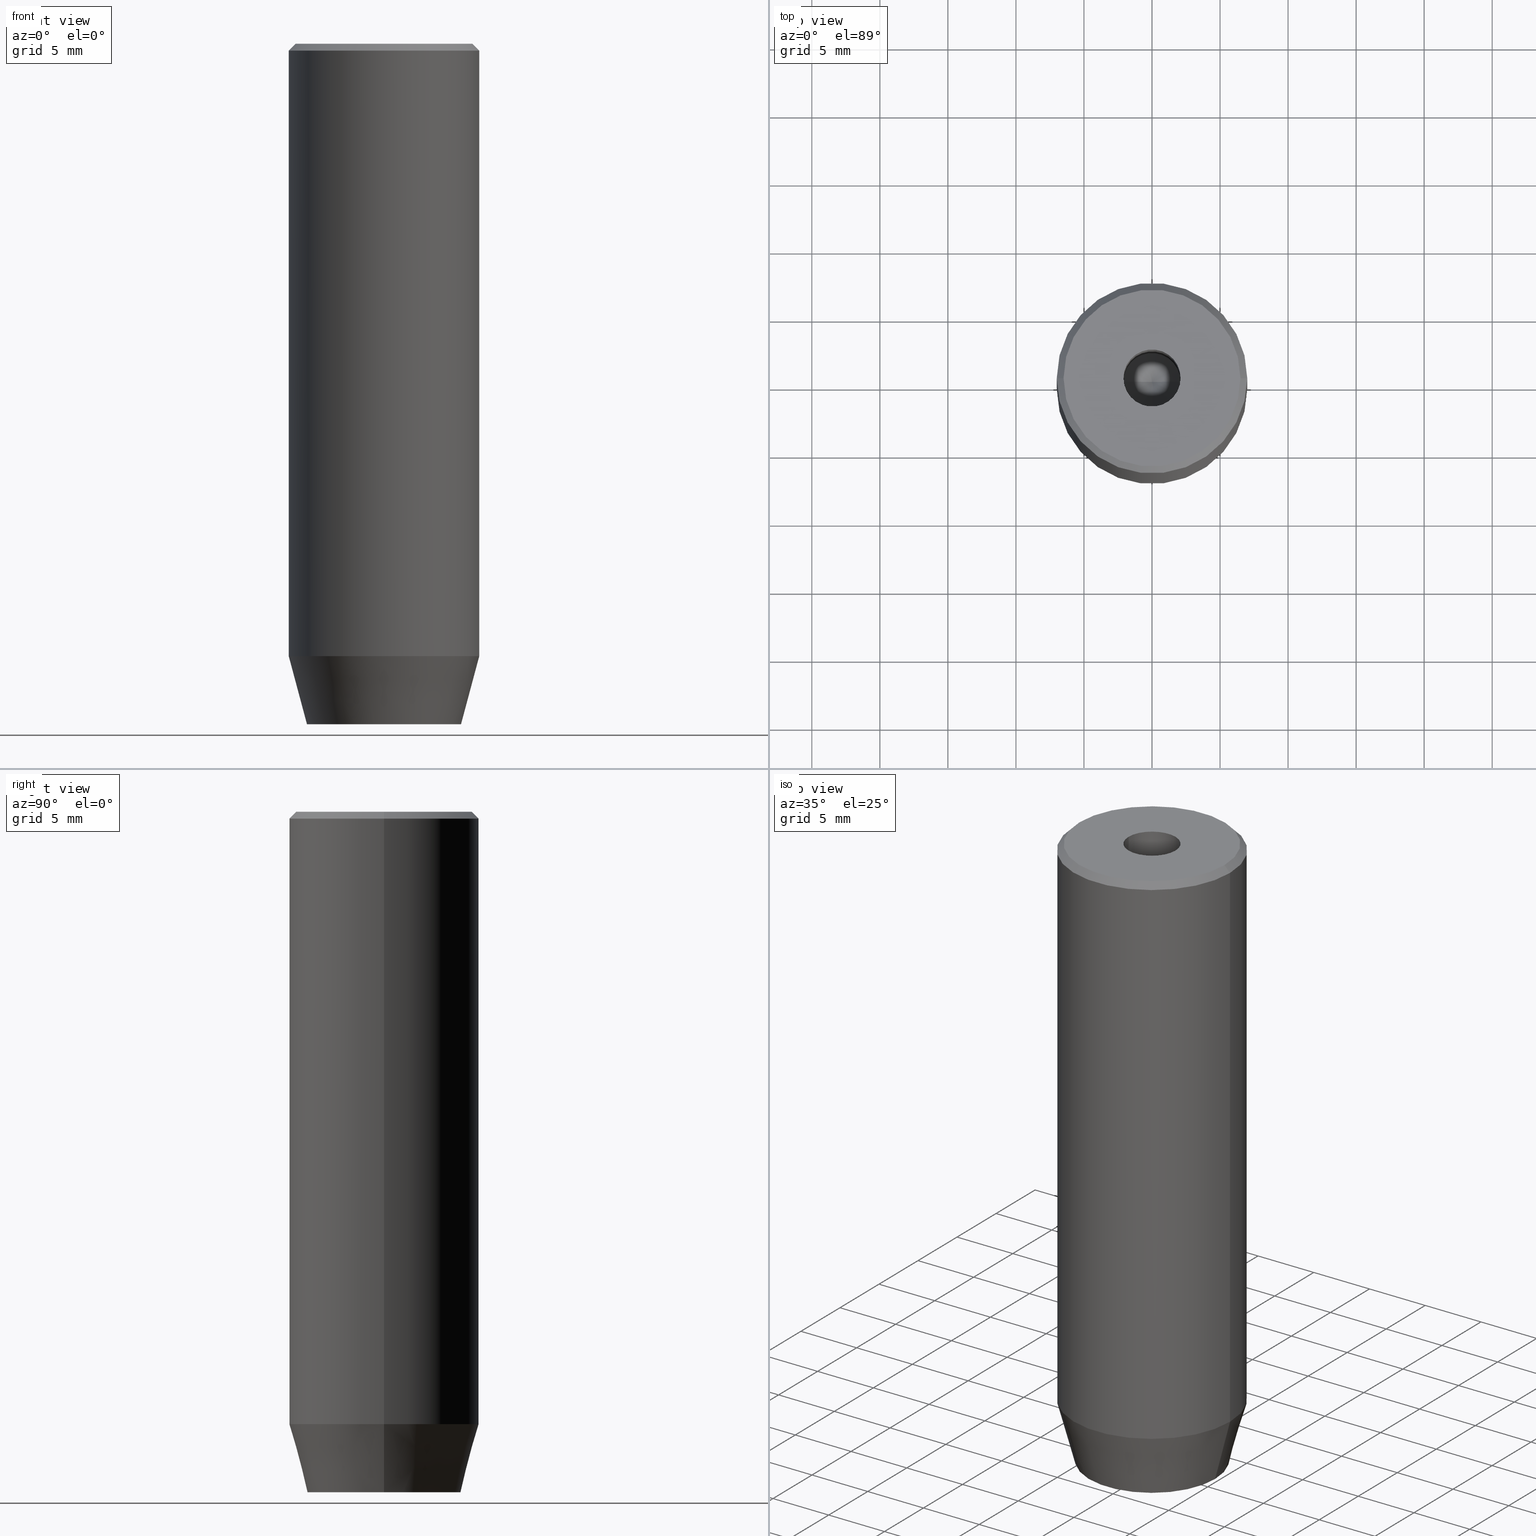
[diagram: canonical four-view strip — front | top / right | iso, engineering-drawing reading convention]
A machine part, canonical four-view strip (front | top / right | iso — engineering-drawing reading convention). The complete STEP part file that produces these views, byte-faithful:
ISO-10303-21;
HEADER;
FILE_DESCRIPTION (( 'STEP AP203' ),
    '1' );
FILE_NAME ('4acf.STEP',
    '2024-01-02T21:54:33',
    ( '' ),
    ( '' ),
    'SwSTEP 2.0',
    'SolidWorks 2019',
    '' );
FILE_SCHEMA (( 'CONFIG_CONTROL_DESIGN' ));
ENDSEC;

DATA;
#1 = APPROVAL_ROLE ( '' ) ;
#2 = EDGE_LOOP ( 'NONE', ( #227, #334, #571, #514 ) ) ;
#3 = EDGE_CURVE ( 'NONE', #48, #275, #117, .T. ) ;
#4 = FACE_OUTER_BOUND ( 'NONE', #389, .T. ) ;
#5 = ORIENTED_EDGE ( 'NONE', *, *, #456, .F. ) ;
#6 = CARTESIAN_POINT ( 'NONE',  ( 0.000000000000000000, 0.000000000000000000, -50.00000000000000000 ) ) ;
#7 = VECTOR ( 'NONE', #332, 1000.000000000000000 ) ;
#8 = ORIENTED_EDGE ( 'NONE', *, *, #541, .T. ) ;
#9 = CARTESIAN_POINT ( 'NONE',  ( -5.660254037844384634, 7.752169791919240742E-16, -50.00000000000000000 ) ) ;
#10 = CARTESIAN_POINT ( 'NONE',  ( 2.099999999999997868, 0.000000000000000000, 0.000000000000000000 ) ) ;
#11 = ORIENTED_EDGE ( 'NONE', *, *, #58, .T. ) ;
#12 = CYLINDRICAL_SURFACE ( 'NONE', #196, 2.099999999999997868 ) ;
#13 = EDGE_CURVE ( 'NONE', #460, #445, #201, .T. ) ;
#14 = EDGE_LOOP ( 'NONE', ( #102, #152, #497, #31 ) ) ;
#15 = CARTESIAN_POINT ( 'NONE',  ( -1.249999999999999556, -2.165063509461096825, -47.20000000000000284 ) ) ;
#16 = CC_DESIGN_PERSON_AND_ORGANIZATION_ASSIGNMENT ( #264, #304, ( #387 ) ) ;
#17 = CIRCLE ( 'NONE', #240, 6.499999999999999112 ) ;
#18 = CONICAL_SURFACE ( 'NONE', #72, 2.099999999999996980, 1.029744258676652535 ) ;
#19 = DIRECTION ( 'NONE',  ( 0.000000000000000000, 0.000000000000000000, 1.000000000000000000 ) ) ;
#20 = ORIENTED_EDGE ( 'NONE', *, *, #222, .T. ) ;
#21 = CARTESIAN_POINT ( 'NONE',  ( -1.084202172485504434E-16, 2.886751345948129543, -47.20000000000000284 ) ) ;
#22 = CARTESIAN_POINT ( 'NONE',  ( 2.099999999999996980, 0.000000000000000000, -15.00000000000000000 ) ) ;
#23 = DIRECTION ( 'NONE',  ( -0.000000000000000000, -0.000000000000000000, 1.000000000000000000 ) ) ;
#24 = DIRECTION ( 'NONE',  ( 1.000000000000000000, 0.000000000000000000, 0.000000000000000000 ) ) ;
#25 = DIRECTION ( 'NONE',  ( 1.000000000000000000, 0.000000000000000000, 0.000000000000000000 ) ) ;
#26 = ORIENTED_EDGE ( 'NONE', *, *, #364, .F. ) ;
#27 = EDGE_CURVE ( 'NONE', #517, #376, #421, .T. ) ;
#28 = DIRECTION ( 'NONE',  ( -0.000000000000000000, 0.000000000000000000, -1.000000000000000000 ) ) ;
#29 = LOCAL_TIME ( 22, 54, 33.00000000000000000, #295 ) ;
#30 = COORDINATED_UNIVERSAL_TIME_OFFSET ( 1, 0, .AHEAD. ) ;
#31 = ORIENTED_EDGE ( 'NONE', *, *, #283, .T. ) ;
#32 = APPROVAL ( #128, 'NEUR�EN�' ) ;
#33 = FACE_OUTER_BOUND ( 'NONE', #454, .T. ) ;
#34 = CARTESIAN_POINT ( 'NONE',  ( 0.000000000000000000, 0.000000000000000000, -1.990051048614449116E-16 ) ) ;
#35 = CARTESIAN_POINT ( 'NONE',  ( 7.000000000000000000, 0.000000000000000000, -45.00000000000000711 ) ) ;
#36 = EDGE_CURVE ( 'NONE', #163, #445, #563, .T. ) ;
#37 = DIRECTION ( 'NONE',  ( 1.000000000000000000, 0.000000000000000000, 0.000000000000000000 ) ) ;
#38 = CARTESIAN_POINT ( 'NONE',  ( 2.500000000000000000, 0.000000000000000000, -47.20000000000000284 ) ) ;
#39 = VECTOR ( 'NONE', #394, 1000.000000000000114 ) ;
#40 = FACE_BOUND ( 'NONE', #347, .T. ) ;
#41 = DIRECTION ( 'NONE',  ( 0.8660254037844385966, -0.5000000000000001110, 0.000000000000000000 ) ) ;
#42 = COORDINATED_UNIVERSAL_TIME_OFFSET ( 1, 0, .AHEAD. ) ;
#43 = EDGE_CURVE ( 'NONE', #460, #94, #343, .T. ) ;
#44 = VERTEX_POINT ( 'NONE', #253 ) ;
#45 = PERSON_AND_ORGANIZATION_ROLE ( 'classification_officer' ) ;
#46 = CARTESIAN_POINT ( 'NONE',  ( 2.500000000000000000, -1.443375672974064106, -47.20000000000000284 ) ) ;
#47 = PRODUCT_RELATED_PRODUCT_CATEGORY ( 'detail', '', ( #299 ) ) ;
#48 = VERTEX_POINT ( 'NONE', #439 ) ;
#49 = PERSON_AND_ORGANIZATION ( #566, #92 ) ;
#50 = CARTESIAN_POINT ( 'NONE',  ( 1.250000000000000222, 2.165063509461096825, -47.20000000000000284 ) ) ;
#51 = PERSON_AND_ORGANIZATION ( #566, #92 ) ;
#52 = DIRECTION ( 'NONE',  ( 0.5000000000000001110, 0.8660254037844385966, -0.000000000000000000 ) ) ;
#53 = APPROVAL ( #248, 'NEUR�EN�' ) ;
#54 = ORIENTED_EDGE ( 'NONE', *, *, #3, .F. ) ;
#55 = CARTESIAN_POINT ( 'NONE',  ( -2.168404344971008868E-16, 2.886751345948129099, -50.00000000000000000 ) ) ;
#56 = AXIS2_PLACEMENT_3D ( 'NONE', #241, #418, #559 ) ;
#57 = VECTOR ( 'NONE', #93, 1000.000000000000000 ) ;
#58 = EDGE_CURVE ( 'NONE', #553, #44, #397, .T. ) ;
#59 = DIRECTION ( 'NONE',  ( 1.000000000000000000, 0.000000000000000000, 0.000000000000000000 ) ) ;
#60 = ORIENTED_EDGE ( 'NONE', *, *, #450, .F. ) ;
#61 = CARTESIAN_POINT ( 'NONE',  ( 1.249999999999999778, -2.165063509461096380, -50.00000000000000000 ) ) ;
#62 = ORIENTED_EDGE ( 'NONE', *, *, #437, .T. ) ;
#63 = CARTESIAN_POINT ( 'NONE',  ( 2.500000000000000000, 1.443375672974064328, -50.00000000000000000 ) ) ;
#64 = AXIS2_PLACEMENT_3D ( 'NONE', #34, #529, #120 ) ;
#65 = ORIENTED_EDGE ( 'NONE', *, *, #283, .F. ) ;
#66 = CARTESIAN_POINT ( 'NONE',  ( -6.499999999999999112, 0.000000000000000000, 0.000000000000000000 ) ) ;
#67 = ADVANCED_FACE ( 'NONE', ( #577 ), #519, .T. ) ;
#68 = ORIENTED_EDGE ( 'NONE', *, *, #160, .T. ) ;
#69 = CARTESIAN_POINT ( 'NONE',  ( 0.000000000000000000, 0.000000000000000000, -15.00000000000000000 ) ) ;
#70 = APPLICATION_PROTOCOL_DEFINITION ( 'international standard', 'config_control_design', 1994, #328 ) ;
#71 = DIRECTION ( 'NONE',  ( -0.000000000000000000, -0.000000000000000000, 1.000000000000000000 ) ) ;
#72 = AXIS2_PLACEMENT_3D ( 'NONE', #552, #462, #140 ) ;
#73 = ORIENTED_EDGE ( 'NONE', *, *, #481, .F. ) ;
#74 = CARTESIAN_POINT ( 'NONE',  ( 0.000000000000000000, 0.000000000000000000, -15.00000000000000000 ) ) ;
#75 = ADVANCED_FACE ( 'NONE', ( #213 ), #308, .T. ) ;
#76 = CARTESIAN_POINT ( 'NONE',  ( -7.000000000000000000, 8.572527594031473190E-16, -45.00000000000000711 ) ) ;
#77 = CARTESIAN_POINT ( 'NONE',  ( 0.000000000000000000, 0.000000000000000000, -15.00000000000000000 ) ) ;
#78 = DIRECTION ( 'NONE',  ( 1.000000000000000000, 0.000000000000000000, 0.000000000000000000 ) ) ;
#79 = ORIENTED_EDGE ( 'NONE', *, *, #43, .T. ) ;
#80 = AXIS2_PLACEMENT_3D ( 'NONE', #231, #416, #195 ) ;
#81 = DIRECTION ( 'NONE',  ( 1.000000000000000000, 0.000000000000000000, 0.000000000000000000 ) ) ;
#82 = DIRECTION ( 'NONE',  ( -1.000000000000000000, 0.000000000000000000, 0.000000000000000000 ) ) ;
#83 = EDGE_LOOP ( 'NONE', ( #532, #463, #494, #136 ) ) ;
#84 = EDGE_CURVE ( 'NONE', #267, #376, #218, .T. ) ;
#85 = COORDINATED_UNIVERSAL_TIME_OFFSET ( 1, 0, .AHEAD. ) ;
#86 = EDGE_LOOP ( 'NONE', ( #505, #443, #417, #414, #396, #73 ) ) ;
#87 = DATE_AND_TIME ( #169, #127 ) ;
#88 = AXIS2_PLACEMENT_3D ( 'NONE', #573, #344, #112 ) ;
#89 = CARTESIAN_POINT ( 'NONE',  ( -2.500000000000000444, -1.443375672974064328, -50.00000000000000000 ) ) ;
#90 = CIRCLE ( 'NONE', #423, 5.660254037844384634 ) ;
#91 = ADVANCED_FACE ( 'NONE', ( #40, #402 ), #174, .T. ) ;
#92 = ORGANIZATION ( 'NEUR�EN�', 'NEUR�EN�', '' ) ;
#93 = DIRECTION ( 'NONE',  ( -0.000000000000000000, -0.000000000000000000, 1.000000000000000000 ) ) ;
#94 = VERTEX_POINT ( 'NONE', #235 ) ;
#95 = CARTESIAN_POINT ( 'NONE',  ( 2.500000000000000000, 1.443375672974064328, -47.20000000000000284 ) ) ;
#96 = EDGE_CURVE ( 'NONE', #376, #517, #251, .T. ) ;
#97 = FACE_OUTER_BOUND ( 'NONE', #314, .T. ) ;
#98 = ORIENTED_EDGE ( 'NONE', *, *, #290, .T. ) ;
#99 = DIRECTION ( 'NONE',  ( 1.000000000000000000, 0.000000000000000000, 0.000000000000000000 ) ) ;
#100 = CIRCLE ( 'NONE', #88, 5.660254037844384634 ) ;
#101 = CARTESIAN_POINT ( 'NONE',  ( -7.000000000000000000, 8.572527594031473190E-16, 0.000000000000000000 ) ) ;
#102 = ORIENTED_EDGE ( 'NONE', *, *, #481, .T. ) ;
#103 = DIRECTION ( 'NONE',  ( -0.8660254037844387076, 0.4999999999999998890, 0.000000000000000000 ) ) ;
#104 = ORIENTED_EDGE ( 'NONE', *, *, #309, .F. ) ;
#105 = CARTESIAN_POINT ( 'NONE',  ( 0.000000000000000000, 0.000000000000000000, 0.000000000000000000 ) ) ;
#106 = ORIENTED_EDGE ( 'NONE', *, *, #96, .T. ) ;
#107 = FACE_OUTER_BOUND ( 'NONE', #208, .T. ) ;
#108 = EDGE_CURVE ( 'NONE', #273, #419, #468, .T. ) ;
#109 = CONICAL_SURFACE ( 'NONE', #315, 7.000000000000000000, 0.2617993877991499074 ) ;
#110 =( NAMED_UNIT ( * ) PLANE_ANGLE_UNIT ( ) SI_UNIT ( $, .RADIAN. ) );
#111 = ORIENTED_EDGE ( 'NONE', *, *, #309, .T. ) ;
#112 = DIRECTION ( 'NONE',  ( 1.000000000000000000, 0.000000000000000000, 0.000000000000000000 ) ) ;
#113 = ORIENTED_EDGE ( 'NONE', *, *, #556, .T. ) ;
#114 = CARTESIAN_POINT ( 'NONE',  ( -1.249999999999999556, -2.165063509461096825, -47.20000000000000284 ) ) ;
#115 = EDGE_CURVE ( 'NONE', #410, #267, #530, .T. ) ;
#116 = CARTESIAN_POINT ( 'NONE',  ( -2.099999999999997868, 2.571758278209438999E-16, 0.000000000000000000 ) ) ;
#117 = CIRCLE ( 'NONE', #457, 2.099999999999996980 ) ;
#118 = CONICAL_SURFACE ( 'NONE', #458, 6.499999999999999112, 0.7853981633974447263 ) ;
#119 = PERSON_AND_ORGANIZATION ( #566, #92 ) ;
#120 = DIRECTION ( 'NONE',  ( 1.000000000000000000, 0.000000000000000000, 0.000000000000000000 ) ) ;
#121 = CARTESIAN_POINT ( 'NONE',  ( -2.500000000000000444, 1.443375672974064772, -47.20000000000000284 ) ) ;
#122 = VERTEX_POINT ( 'NONE', #321 ) ;
#123 = DIRECTION ( 'NONE',  ( 0.5000000000000000000, -0.8660254037844387076, 0.000000000000000000 ) ) ;
#124 = CARTESIAN_POINT ( 'NONE',  ( 0.000000000000000000, 0.000000000000000000, 0.000000000000000000 ) ) ;
#125 = EDGE_CURVE ( 'NONE', #384, #148, #350, .T. ) ;
#126 = VECTOR ( 'NONE', #536, 1000.000000000000000 ) ;
#127 = LOCAL_TIME ( 22, 54, 33.00000000000000000, #85 ) ;
#128 = APPROVAL_STATUS ( 'not_yet_approved' ) ;
#129 = DIRECTION ( 'NONE',  ( -0.000000000000000000, -0.000000000000000000, -1.000000000000000000 ) ) ;
#130 = DATE_AND_TIME ( #542, #503 ) ;
#131 = EDGE_CURVE ( 'NONE', #331, #163, #548, .T. ) ;
#132 = AXIS2_PLACEMENT_3D ( 'NONE', #38, #390, #28 ) ;
#133 = CARTESIAN_POINT ( 'NONE',  ( -2.500000000000000444, 0.000000000000000000, -47.20000000000000284 ) ) ;
#134 = ORIENTED_EDGE ( 'NONE', *, *, #236, .T. ) ;
#135 = VECTOR ( 'NONE', #478, 1000.000000000000114 ) ;
#136 = ORIENTED_EDGE ( 'NONE', *, *, #473, .T. ) ;
#137 = CARTESIAN_POINT ( 'NONE',  ( 0.000000000000000000, -2.886751345948128211, -50.00000000000000000 ) ) ;
#138 = EDGE_CURVE ( 'NONE', #410, #517, #150, .T. ) ;
#139 = CARTESIAN_POINT ( 'NONE',  ( 0.000000000000000000, 0.000000000000000000, -0.5000000000000048850 ) ) ;
#140 = DIRECTION ( 'NONE',  ( 1.000000000000000000, 0.000000000000000000, 0.000000000000000000 ) ) ;
#141 = ORIENTED_EDGE ( 'NONE', *, *, #345, .T. ) ;
#142 = FACE_OUTER_BOUND ( 'NONE', #263, .T. ) ;
#143 = AXIS2_PLACEMENT_3D ( 'NONE', #74, #487, #78 ) ;
#144 = DIRECTION ( 'NONE',  ( 0.000000000000000000, 0.000000000000000000, -1.000000000000000000 ) ) ;
#145 = ORIENTED_EDGE ( 'NONE', *, *, #290, .F. ) ;
#146 = DIRECTION ( 'NONE',  ( 0.000000000000000000, 0.000000000000000000, -1.000000000000000000 ) ) ;
#147 = LINE ( 'NONE', #10, #57 ) ;
#148 = VERTEX_POINT ( 'NONE', #464 ) ;
#149 = PRODUCT_DEFINITION ( 'NEZN�M�', '', #387, #210 ) ;
#150 = LINE ( 'NONE', #66, #359 ) ;
#151 = DIRECTION ( 'NONE',  ( -0.2588190451025211836, 3.169619151431770488E-17, 0.9659258262890680902 ) ) ;
#152 = ORIENTED_EDGE ( 'NONE', *, *, #131, .F. ) ;
#153 = APPROVAL ( #544, 'NEUR�EN�' ) ;
#154 = CARTESIAN_POINT ( 'NONE',  ( 0.000000000000000000, 0.000000000000000000, -45.00000000000000711 ) ) ;
#155 = AXIS2_PLACEMENT_3D ( 'NONE', #114, #531, #257 ) ;
#156 = SECURITY_CLASSIFICATION ( '', '', #459 ) ;
#157 = MECHANICAL_CONTEXT ( 'NONE', #551, 'mechanical' ) ;
#158 = DIRECTION ( 'NONE',  ( 0.000000000000000000, -1.000000000000000000, 0.000000000000000000 ) ) ;
#159 = DIRECTION ( 'NONE',  ( -0.000000000000000000, -0.000000000000000000, 1.000000000000000000 ) ) ;
#160 = EDGE_CURVE ( 'NONE', #419, #122, #477, .T. ) ;
#161 = ADVANCED_BREP_SHAPE_REPRESENTATION ( '4acf', ( #461, #271 ), #168 ) ;
#162 = PERSON_AND_ORGANIZATION ( #566, #92 ) ;
#163 = VERTEX_POINT ( 'NONE', #63 ) ;
#164 = CARTESIAN_POINT ( 'NONE',  ( -6.499999999999999112, 0.000000000000000000, 0.000000000000000000 ) ) ;
#165 = VERTEX_POINT ( 'NONE', #233 ) ;
#166 = FACE_OUTER_BOUND ( 'NONE', #83, .T. ) ;
#167 = VECTOR ( 'NONE', #567, 1000.000000000000000 ) ;
#168 =( GEOMETRIC_REPRESENTATION_CONTEXT ( 3 ) GLOBAL_UNCERTAINTY_ASSIGNED_CONTEXT ( ( #171 ) ) GLOBAL_UNIT_ASSIGNED_CONTEXT ( ( #333, #110, #433 ) ) REPRESENTATION_CONTEXT ( 'NONE', 'WORKASPACE' ) );
#169 = CALENDAR_DATE ( 2024, 2, 1 ) ;
#170 = ORIENTED_EDGE ( 'NONE', *, *, #108, .T. ) ;
#171 = UNCERTAINTY_MEASURE_WITH_UNIT (LENGTH_MEASURE( 1.000000000000000082E-05 ), #333, 'distance_accuracy_value', 'NONE');
#172 = DIRECTION ( 'NONE',  ( -0.000000000000000000, -0.000000000000000000, -1.000000000000000000 ) ) ;
#173 = ORIENTED_EDGE ( 'NONE', *, *, #324, .T. ) ;
#174 = PLANE ( 'NONE',  #325 ) ;
#175 = EDGE_CURVE ( 'NONE', #94, #273, #518, .T. ) ;
#176 = CARTESIAN_POINT ( 'NONE',  ( 0.000000000000000000, 0.000000000000000000, 0.000000000000000000 ) ) ;
#177 = ORIENTED_EDGE ( 'NONE', *, *, #345, .F. ) ;
#178 = LOCAL_TIME ( 22, 54, 33.00000000000000000, #42 ) ;
#179 = LINE ( 'NONE', #133, #185 ) ;
#180 = ADVANCED_FACE ( 'NONE', ( #107 ), #12, .F. ) ;
#181 = DATE_TIME_ROLE ( 'classification_date' ) ;
#182 = CARTESIAN_POINT ( 'NONE',  ( 0.000000000000000000, 0.000000000000000000, 0.000000000000000000 ) ) ;
#183 = VERTEX_POINT ( 'NONE', #55 ) ;
#184 = CARTESIAN_POINT ( 'NONE',  ( -1.250000000000000444, 2.165063509461097269, -47.20000000000000284 ) ) ;
#185 = VECTOR ( 'NONE', #365, 1000.000000000000000 ) ;
#186 = FACE_BOUND ( 'NONE', #86, .T. ) ;
#187 = AXIS2_PLACEMENT_3D ( 'NONE', #504, #144, #278 ) ;
#188 = DIRECTION ( 'NONE',  ( -0.000000000000000000, -0.000000000000000000, -1.000000000000000000 ) ) ;
#189 = EDGE_LOOP ( 'NONE', ( #368, #479, #469 ) ) ;
#190 = EDGE_CURVE ( 'NONE', #165, #215, #90, .T. ) ;
#191 = CYLINDRICAL_SURFACE ( 'NONE', #435, 2.099999999999997868 ) ;
#192 = EDGE_LOOP ( 'NONE', ( #424, #471, #512, #79, #249, #62 ) ) ;
#193 = PLANE ( 'NONE',  #80 ) ;
#194 = EDGE_LOOP ( 'NONE', ( #279, #246, #5, #230 ) ) ;
#195 = DIRECTION ( 'NONE',  ( -1.000000000000000000, 0.000000000000000000, -0.000000000000000000 ) ) ;
#196 = AXIS2_PLACEMENT_3D ( 'NONE', #105, #287, #413 ) ;
#197 = EDGE_CURVE ( 'NONE', #234, #331, #369, .T. ) ;
#198 = VERTEX_POINT ( 'NONE', #137 ) ;
#199 = DIRECTION ( 'NONE',  ( -0.8660254037844387076, -0.5000000000000001110, 0.000000000000000000 ) ) ;
#200 = LINE ( 'NONE', #22, #337 ) ;
#201 = LINE ( 'NONE', #288, #167 ) ;
#202 = PLANE ( 'NONE',  #132 ) ;
#203 = DIRECTION ( 'NONE',  ( 1.000000000000000000, 0.000000000000000000, 0.000000000000000000 ) ) ;
#204 = PLANE ( 'NONE',  #448 ) ;
#205 = ADVANCED_FACE ( 'NONE', ( #276 ), #193, .T. ) ;
#206 = CIRCLE ( 'NONE', #286, 7.000000000000000000 ) ;
#207 = DATE_AND_TIME ( #576, #425 ) ;
#208 = EDGE_LOOP ( 'NONE', ( #54, #173, #11, #538 ) ) ;
#209 = DIRECTION ( 'NONE',  ( -0.000000000000000000, -0.000000000000000000, 1.000000000000000000 ) ) ;
#210 = DESIGN_CONTEXT ( 'detailed design', #328, 'design' ) ;
#211 = CARTESIAN_POINT ( 'NONE',  ( 0.000000000000000000, 0.000000000000000000, 0.000000000000000000 ) ) ;
#212 = FACE_OUTER_BOUND ( 'NONE', #363, .T. ) ;
#213 = FACE_OUTER_BOUND ( 'NONE', #572, .T. ) ;
#214 = FACE_OUTER_BOUND ( 'NONE', #14, .T. ) ;
#215 = VERTEX_POINT ( 'NONE', #9 ) ;
#216 = VECTOR ( 'NONE', #348, 1000.000000000000000 ) ;
#217 = ADVANCED_FACE ( 'NONE', ( #142 ), #191, .F. ) ;
#218 = LINE ( 'NONE', #492, #586 ) ;
#219 = LINE ( 'NONE', #184, #126 ) ;
#220 = ORIENTED_EDGE ( 'NONE', *, *, #547, .F. ) ;
#221 = CARTESIAN_POINT ( 'NONE',  ( 0.000000000000000000, -2.886751345948128211, -47.20000000000000284 ) ) ;
#222 = EDGE_CURVE ( 'NONE', #122, #183, #327, .T. ) ;
#223 = VECTOR ( 'NONE', #317, 1000.000000000000000 ) ;
#224 = DATE_AND_TIME ( #455, #178 ) ;
#225 = AXIS2_PLACEMENT_3D ( 'NONE', #176, #543, #268 ) ;
#226 = ORIENTED_EDGE ( 'NONE', *, *, #43, .F. ) ;
#227 = ORIENTED_EDGE ( 'NONE', *, *, #84, .F. ) ;
#228 = EDGE_CURVE ( 'NONE', #148, #384, #206, .T. ) ;
#229 = AXIS2_PLACEMENT_3D ( 'NONE', #139, #146, #377 ) ;
#230 = ORIENTED_EDGE ( 'NONE', *, *, #131, .T. ) ;
#231 = CARTESIAN_POINT ( 'NONE',  ( 0.000000000000000000, 0.000000000000000000, -47.20000000000000284 ) ) ;
#232 = ORIENTED_EDGE ( 'NONE', *, *, #583, .T. ) ;
#233 = CARTESIAN_POINT ( 'NONE',  ( 5.660254037844384634, 0.000000000000000000, -50.00000000000000000 ) ) ;
#234 = VERTEX_POINT ( 'NONE', #21 ) ;
#235 = CARTESIAN_POINT ( 'NONE',  ( 0.000000000000000000, -2.886751345948128211, -47.20000000000000284 ) ) ;
#236 = EDGE_CURVE ( 'NONE', #445, #198, #284, .T. ) ;
#237 = VECTOR ( 'NONE', #484, 999.9999999999998863 ) ;
#238 = DIRECTION ( 'NONE',  ( -1.000000000000000000, 0.000000000000000000, 0.000000000000000000 ) ) ;
#239 = EDGE_LOOP ( 'NONE', ( #68, #104, #520, #170 ) ) ;
#240 = AXIS2_PLACEMENT_3D ( 'NONE', #525, #71, #483 ) ;
#241 = CARTESIAN_POINT ( 'NONE',  ( 0.000000000000000000, 0.000000000000000000, 0.000000000000000000 ) ) ;
#242 = CC_DESIGN_SECURITY_CLASSIFICATION ( #156, ( #387 ) ) ;
#243 = DIRECTION ( 'NONE',  ( -0.000000000000000000, -0.000000000000000000, 1.000000000000000000 ) ) ;
#244 = EDGE_LOOP ( 'NONE', ( #434, #272 ) ) ;
#245 = CARTESIAN_POINT ( 'NONE',  ( 2.500000000000000000, 1.443375672974064328, -47.20000000000000284 ) ) ;
#246 = ORIENTED_EDGE ( 'NONE', *, *, #13, .F. ) ;
#247 = DIRECTION ( 'NONE',  ( -0.000000000000000000, -0.000000000000000000, 1.000000000000000000 ) ) ;
#248 = APPROVAL_STATUS ( 'not_yet_approved' ) ;
#249 = ORIENTED_EDGE ( 'NONE', *, *, #175, .T. ) ;
#250 = LINE ( 'NONE', #116, #502 ) ;
#251 = CIRCLE ( 'NONE', #229, 7.000000000000000000 ) ;
#252 = LINE ( 'NONE', #255, #135 ) ;
#253 = CARTESIAN_POINT ( 'NONE',  ( 2.099999999999998757, 0.000000000000000000, -1.990051048614449116E-16 ) ) ;
#254 = PLANE ( 'NONE',  #155 ) ;
#255 = CARTESIAN_POINT ( 'NONE',  ( -1.249999999999999556, -2.165063509461096825, -50.00000000000000000 ) ) ;
#256 = CARTESIAN_POINT ( 'NONE',  ( 0.000000000000000000, 0.000000000000000000, -0.5000000000000048850 ) ) ;
#257 = DIRECTION ( 'NONE',  ( 0.8660254037844387076, -0.4999999999999998890, 0.000000000000000000 ) ) ;
#258 = EDGE_LOOP ( 'NONE', ( #134, #545, #226, #560 ) ) ;
#259 = CC_DESIGN_PERSON_AND_ORGANIZATION_ASSIGNMENT ( #119, #523, ( #299 ) ) ;
#260 = ORIENTED_EDGE ( 'NONE', *, *, #364, .T. ) ;
#261 = CARTESIAN_POINT ( 'NONE',  ( 2.500000000000000000, 0.000000000000000000, -47.20000000000000284 ) ) ;
#262 = VECTOR ( 'NONE', #361, 1000.000000000000000 ) ;
#263 = EDGE_LOOP ( 'NONE', ( #489, #26, #292, #320 ) ) ;
#264 = PERSON_AND_ORGANIZATION ( #566, #92 ) ;
#265 = EDGE_CURVE ( 'NONE', #215, #165, #100, .T. ) ;
#266 = DIRECTION ( 'NONE',  ( -0.8660254037844385966, 0.5000000000000001110, 0.000000000000000000 ) ) ;
#267 = VERTEX_POINT ( 'NONE', #533 ) ;
#268 = DIRECTION ( 'NONE',  ( -1.000000000000000000, 0.000000000000000000, 0.000000000000000000 ) ) ;
#269 = VECTOR ( 'NONE', #172, 1000.000000000000000 ) ;
#270 = PERSON_AND_ORGANIZATION_ROLE ( 'creator' ) ;
#271 = AXIS2_PLACEMENT_3D ( 'NONE', #300, #346, #291 ) ;
#272 = ORIENTED_EDGE ( 'NONE', *, *, #338, .T. ) ;
#273 = VERTEX_POINT ( 'NONE', #297 ) ;
#274 = ADVANCED_FACE ( 'NONE', ( #302 ), #528, .F. ) ;
#275 = VERTEX_POINT ( 'NONE', #398 ) ;
#276 = FACE_OUTER_BOUND ( 'NONE', #192, .T. ) ;
#277 = AXIS2_PLACEMENT_3D ( 'NONE', #301, #486, #37 ) ;
#278 = DIRECTION ( 'NONE',  ( -1.000000000000000000, 0.000000000000000000, -0.000000000000000000 ) ) ;
#279 = ORIENTED_EDGE ( 'NONE', *, *, #36, .T. ) ;
#280 = CC_DESIGN_APPROVAL ( #153, ( #156 ) ) ;
#281 = DIRECTION ( 'NONE',  ( -0.000000000000000000, -0.000000000000000000, 1.000000000000000000 ) ) ;
#282 = ORIENTED_EDGE ( 'NONE', *, *, #190, .F. ) ;
#283 = EDGE_CURVE ( 'NONE', #234, #183, #386, .T. ) ;
#284 = LINE ( 'NONE', #61, #408 ) ;
#285 = CARTESIAN_POINT ( 'NONE',  ( 0.000000000000000000, 0.000000000000000000, -45.00000000000000711 ) ) ;
#286 = AXIS2_PLACEMENT_3D ( 'NONE', #285, #281, #59 ) ;
#287 = DIRECTION ( 'NONE',  ( -0.000000000000000000, -0.000000000000000000, 1.000000000000000000 ) ) ;
#288 = CARTESIAN_POINT ( 'NONE',  ( 2.500000000000000000, -1.443375672974064106, -47.20000000000000284 ) ) ;
#289 = DIRECTION ( 'NONE',  ( 0.8660254037844385966, 0.4999999999999999445, 0.000000000000000000 ) ) ;
#290 = EDGE_CURVE ( 'NONE', #148, #376, #564, .T. ) ;
#291 = DIRECTION ( 'NONE',  ( 1.000000000000000000, 0.000000000000000000, 0.000000000000000000 ) ) ;
#292 = ORIENTED_EDGE ( 'NONE', *, *, #522, .T. ) ;
#293 = CARTESIAN_POINT ( 'NONE',  ( -1.084202172485504434E-16, 2.886751345948129543, -47.20000000000000284 ) ) ;
#294 = CC_DESIGN_PERSON_AND_ORGANIZATION_ASSIGNMENT ( #49, #270, ( #387 ) ) ;
#295 = COORDINATED_UNIVERSAL_TIME_OFFSET ( 1, 0, .AHEAD. ) ;
#296 = CARTESIAN_POINT ( 'NONE',  ( 2.500000000000000000, 0.000000000000000000, -50.00000000000000000 ) ) ;
#297 = CARTESIAN_POINT ( 'NONE',  ( -2.500000000000000444, -1.443375672974064328, -47.20000000000000284 ) ) ;
#298 = VECTOR ( 'NONE', #41, 1000.000000000000000 ) ;
#299 = PRODUCT ( '4acf', '4acf', '', ( #157 ) ) ;
#300 = CARTESIAN_POINT ( 'NONE',  ( 0.000000000000000000, 0.000000000000000000, 0.000000000000000000 ) ) ;
#301 = CARTESIAN_POINT ( 'NONE',  ( 0.000000000000000000, 0.000000000000000000, -45.00000000000000711 ) ) ;
#302 = FACE_OUTER_BOUND ( 'NONE', #258, .T. ) ;
#303 = ADVANCED_FACE ( 'NONE', ( #33 ), #306, .T. ) ;
#304 = PERSON_AND_ORGANIZATION_ROLE ( 'design_supplier' ) ;
#305 = EDGE_LOOP ( 'NONE', ( #358, #431, #354, #399 ) ) ;
#306 = CYLINDRICAL_SURFACE ( 'NONE', #555, 7.000000000000000000 ) ;
#307 = CALENDAR_DATE ( 2024, 2, 1 ) ;
#308 = CYLINDRICAL_SURFACE ( 'NONE', #509, 7.000000000000000000 ) ;
#309 = EDGE_CURVE ( 'NONE', #356, #122, #568, .T. ) ;
#310 = APPROVAL_PERSON_ORGANIZATION ( #485, #53, #395 ) ;
#311 = LINE ( 'NONE', #453, #223 ) ;
#312 = ORIENTED_EDGE ( 'NONE', *, *, #125, .F. ) ;
#313 = FACE_OUTER_BOUND ( 'NONE', #305, .T. ) ;
#314 = EDGE_LOOP ( 'NONE', ( #282, #524 ) ) ;
#315 = AXIS2_PLACEMENT_3D ( 'NONE', #154, #247, #432 ) ;
#316 = AXIS2_PLACEMENT_3D ( 'NONE', #475, #243, #25 ) ;
#317 = DIRECTION ( 'NONE',  ( -0.8571673007021113344, 1.049727191138617463E-16, 0.5150380749100558209 ) ) ;
#318 = CC_DESIGN_DATE_AND_TIME_ASSIGNMENT ( #362, #584, ( #149 ) ) ;
#319 = CARTESIAN_POINT ( 'NONE',  ( -2.500000000000000444, 0.000000000000000000, -47.20000000000000284 ) ) ;
#320 = ORIENTED_EDGE ( 'NONE', *, *, #547, .T. ) ;
#321 = CARTESIAN_POINT ( 'NONE',  ( -2.500000000000000444, 1.443375672974064772, -50.00000000000000000 ) ) ;
#322 = PLANE ( 'NONE',  #187 ) ;
#323 = CARTESIAN_POINT ( 'NONE',  ( -2.500000000000000444, 0.000000000000000000, -50.00000000000000000 ) ) ;
#324 = EDGE_CURVE ( 'NONE', #48, #553, #250, .T. ) ;
#325 = AXIS2_PLACEMENT_3D ( 'NONE', #355, #535, #472 ) ;
#326 = APPROVAL_PERSON_ORGANIZATION ( #401, #32, #1 ) ;
#327 = LINE ( 'NONE', #426, #546 ) ;
#328 = APPLICATION_CONTEXT ( 'configuration controlled 3d designs of mechanical parts and assemblies' ) ;
#329 = ORIENTED_EDGE ( 'NONE', *, *, #265, .T. ) ;
#330 = CARTESIAN_POINT ( 'NONE',  ( 0.000000000000000000, 0.000000000000000000, -45.00000000000000711 ) ) ;
#331 = VERTEX_POINT ( 'NONE', #245 ) ;
#332 = DIRECTION ( 'NONE',  ( -0.000000000000000000, -0.000000000000000000, -1.000000000000000000 ) ) ;
#333 =( LENGTH_UNIT ( ) NAMED_UNIT ( * ) SI_UNIT ( .MILLI., .METRE. ) );
#334 = ORIENTED_EDGE ( 'NONE', *, *, #115, .F. ) ;
#335 = AXIS2_PLACEMENT_3D ( 'NONE', #330, #372, #561 ) ;
#336 = CARTESIAN_POINT ( 'NONE',  ( -2.500000000000000444, 1.443375672974064772, -47.20000000000000284 ) ) ;
#337 = VECTOR ( 'NONE', #392, 1000.000000000000000 ) ;
#338 = EDGE_CURVE ( 'NONE', #267, #410, #17, .T. ) ;
#339 = APPLICATION_PROTOCOL_DEFINITION ( 'international standard', 'config_control_design', 1994, #551 ) ;
#340 = ORIENTED_EDGE ( 'NONE', *, *, #125, .T. ) ;
#341 = FACE_OUTER_BOUND ( 'NONE', #189, .T. ) ;
#342 = PERSON_AND_ORGANIZATION_ROLE ( 'creator' ) ;
#343 = LINE ( 'NONE', #527, #237 ) ;
#344 = DIRECTION ( 'NONE',  ( -0.000000000000000000, -0.000000000000000000, 1.000000000000000000 ) ) ;
#345 = EDGE_CURVE ( 'NONE', #165, #148, #430, .T. ) ;
#346 = DIRECTION ( 'NONE',  ( 0.000000000000000000, 0.000000000000000000, 1.000000000000000000 ) ) ;
#347 = EDGE_LOOP ( 'NONE', ( #220, #537 ) ) ;
#348 = DIRECTION ( 'NONE',  ( -0.000000000000000000, -0.000000000000000000, -1.000000000000000000 ) ) ;
#349 = AXIS2_PLACEMENT_3D ( 'NONE', #256, #393, #379 ) ;
#350 = CIRCLE ( 'NONE', #335, 7.000000000000000000 ) ;
#351 = VECTOR ( 'NONE', #526, 1000.000000000000000 ) ;
#352 = COORDINATED_UNIVERSAL_TIME_OFFSET ( 1, 0, .AHEAD. ) ;
#353 = CARTESIAN_POINT ( 'NONE',  ( 7.000000000000000000, 0.000000000000000000, 0.000000000000000000 ) ) ;
#354 = ORIENTED_EDGE ( 'NONE', *, *, #27, .F. ) ;
#355 = CARTESIAN_POINT ( 'NONE',  ( 0.000000000000000000, 0.000000000000000000, 0.000000000000000000 ) ) ;
#356 = VERTEX_POINT ( 'NONE', #336 ) ;
#357 = APPROVAL_DATE_TIME ( #130, #153 ) ;
#358 = ORIENTED_EDGE ( 'NONE', *, *, #338, .F. ) ;
#359 = VECTOR ( 'NONE', #554, 1000.000000000000000 ) ;
#360 = APPROVAL_DATE_TIME ( #87, #32 ) ;
#361 = DIRECTION ( 'NONE',  ( 0.000000000000000000, -1.000000000000000000, 0.000000000000000000 ) ) ;
#362 = DATE_AND_TIME ( #307, #29 ) ;
#363 = EDGE_LOOP ( 'NONE', ( #20, #65, #549, #111 ) ) ;
#364 = EDGE_CURVE ( 'NONE', #275, #48, #385, .T. ) ;
#365 = DIRECTION ( 'NONE',  ( 0.000000000000000000, 1.000000000000000000, 0.000000000000000000 ) ) ;
#366 = VECTOR ( 'NONE', #480, 1000.000000000000000 ) ;
#367 = CARTESIAN_POINT ( 'NONE',  ( 1.250000000000000222, 2.165063509461096825, -47.20000000000000284 ) ) ;
#368 = ORIENTED_EDGE ( 'NONE', *, *, #556, .F. ) ;
#369 = LINE ( 'NONE', #367, #474 ) ;
#370 = ADVANCED_FACE ( 'NONE', ( #341 ), #400, .F. ) ;
#371 = ORIENTED_EDGE ( 'NONE', *, *, #27, .T. ) ;
#372 = DIRECTION ( 'NONE',  ( -0.000000000000000000, -0.000000000000000000, 1.000000000000000000 ) ) ;
#373 = ORIENTED_EDGE ( 'NONE', *, *, #190, .T. ) ;
#374 = DIRECTION ( 'NONE',  ( 1.000000000000000000, 0.000000000000000000, 0.000000000000000000 ) ) ;
#375 = CARTESIAN_POINT ( 'NONE',  ( -7.000000000000000000, 8.572527594031473190E-16, -0.5000000000000048850 ) ) ;
#376 = VERTEX_POINT ( 'NONE', #521 ) ;
#377 = DIRECTION ( 'NONE',  ( 1.000000000000000000, 0.000000000000000000, 0.000000000000000000 ) ) ;
#378 = CARTESIAN_POINT ( 'NONE',  ( -1.250000000000000444, 2.165063509461097269, -47.20000000000000284 ) ) ;
#379 = DIRECTION ( 'NONE',  ( 1.000000000000000000, 0.000000000000000000, 0.000000000000000000 ) ) ;
#380 = ADVANCED_FACE ( 'NONE', ( #166 ), #254, .F. ) ;
#381 = CARTESIAN_POINT ( 'NONE',  ( 1.249999999999999778, -2.165063509461096380, -47.20000000000000284 ) ) ;
#382 = CLOSED_SHELL ( 'NONE', ( #180, #370, #491, #67, #303, #515, #91, #75, #391, #498, #574, #507, #380, #274, #405, #411, #205, #534, #217 ) ) ;
#383 = PLANE ( 'NONE',  #540 ) ;
#384 = VERTEX_POINT ( 'NONE', #440 ) ;
#385 = CIRCLE ( 'NONE', #143, 2.099999999999996980 ) ;
#386 = LINE ( 'NONE', #293, #269 ) ;
#387 = PRODUCT_DEFINITION_FORMATION_WITH_SPECIFIED_SOURCE ( 'LIBOVOLN�', '', #299, .NOT_KNOWN. ) ;
#388 = DIRECTION ( 'NONE',  ( -0.8660254037844385966, -0.5000000000000001110, 0.000000000000000000 ) ) ;
#389 = EDGE_LOOP ( 'NONE', ( #60, #113, #260 ) ) ;
#390 = DIRECTION ( 'NONE',  ( 1.000000000000000000, 0.000000000000000000, -0.000000000000000000 ) ) ;
#391 = ADVANCED_FACE ( 'NONE', ( #444 ), #109, .T. ) ;
#392 = DIRECTION ( 'NONE',  ( 0.8571673007021113344, 0.000000000000000000, 0.5150380749100558209 ) ) ;
#393 = DIRECTION ( 'NONE',  ( 0.000000000000000000, 0.000000000000000000, -1.000000000000000000 ) ) ;
#394 = DIRECTION ( 'NONE',  ( 0.2588190451025211836, 0.000000000000000000, 0.9659258262890680902 ) ) ;
#395 = APPROVAL_ROLE ( '' ) ;
#396 = ORIENTED_EDGE ( 'NONE', *, *, #36, .F. ) ;
#397 = CIRCLE ( 'NONE', #64, 2.099999999999998757 ) ;
#398 = CARTESIAN_POINT ( 'NONE',  ( 2.099999999999996980, 0.000000000000000000, -15.00000000000000000 ) ) ;
#399 = ORIENTED_EDGE ( 'NONE', *, *, #138, .F. ) ;
#400 = CONICAL_SURFACE ( 'NONE', #495, 2.099999999999996980, 1.029744258676652535 ) ;
#401 = PERSON_AND_ORGANIZATION ( #566, #92 ) ;
#402 = FACE_OUTER_BOUND ( 'NONE', #244, .T. ) ;
#403 = CARTESIAN_POINT ( 'NONE',  ( 2.500000000000000000, -1.443375672974064106, -50.00000000000000000 ) ) ;
#404 = FACE_OUTER_BOUND ( 'NONE', #2, .T. ) ;
#405 = ADVANCED_FACE ( 'NONE', ( #579 ), #202, .F. ) ;
#406 = LINE ( 'NONE', #447, #298 ) ;
#407 = ORIENTED_EDGE ( 'NONE', *, *, #583, .F. ) ;
#408 = VECTOR ( 'NONE', #199, 999.9999999999998863 ) ;
#409 = PERSON_AND_ORGANIZATION ( #566, #92 ) ;
#410 = VERTEX_POINT ( 'NONE', #164 ) ;
#411 = ADVANCED_FACE ( 'NONE', ( #214 ), #204, .F. ) ;
#412 = PLANE ( 'NONE',  #496 ) ;
#413 = DIRECTION ( 'NONE',  ( 1.000000000000000000, 0.000000000000000000, 0.000000000000000000 ) ) ;
#414 = ORIENTED_EDGE ( 'NONE', *, *, #236, .F. ) ;
#415 = EDGE_CURVE ( 'NONE', #356, #234, #219, .T. ) ;
#416 = DIRECTION ( 'NONE',  ( 0.000000000000000000, 0.000000000000000000, -1.000000000000000000 ) ) ;
#417 = ORIENTED_EDGE ( 'NONE', *, *, #569, .F. ) ;
#418 = DIRECTION ( 'NONE',  ( -0.000000000000000000, -0.000000000000000000, 1.000000000000000000 ) ) ;
#419 = VERTEX_POINT ( 'NONE', #89 ) ;
#420 = DIRECTION ( 'NONE',  ( 0.000000000000000000, 1.000000000000000000, 0.000000000000000000 ) ) ;
#421 = CIRCLE ( 'NONE', #349, 7.000000000000000000 ) ;
#422 = AXIS2_PLACEMENT_3D ( 'NONE', #381, #123, #289 ) ;
#423 = AXIS2_PLACEMENT_3D ( 'NONE', #6, #506, #374 ) ;
#424 = ORIENTED_EDGE ( 'NONE', *, *, #415, .T. ) ;
#425 = LOCAL_TIME ( 22, 54, 33.00000000000000000, #30 ) ;
#426 = CARTESIAN_POINT ( 'NONE',  ( -1.250000000000000444, 2.165063509461097269, -50.00000000000000000 ) ) ;
#427 = CC_DESIGN_PERSON_AND_ORGANIZATION_ASSIGNMENT ( #162, #342, ( #149 ) ) ;
#428 = CARTESIAN_POINT ( 'NONE',  ( -2.099999999999998757, 2.571758278209439985E-16, -1.990051048614449116E-16 ) ) ;
#429 = ORIENTED_EDGE ( 'NONE', *, *, #228, .F. ) ;
#430 = LINE ( 'NONE', #35, #39 ) ;
#431 = ORIENTED_EDGE ( 'NONE', *, *, #84, .T. ) ;
#432 = DIRECTION ( 'NONE',  ( 1.000000000000000000, 0.000000000000000000, 0.000000000000000000 ) ) ;
#433 =( NAMED_UNIT ( * ) SI_UNIT ( $, .STERADIAN. ) SOLID_ANGLE_UNIT ( ) );
#434 = ORIENTED_EDGE ( 'NONE', *, *, #115, .T. ) ;
#435 = AXIS2_PLACEMENT_3D ( 'NONE', #470, #508, #99 ) ;
#436 = DIRECTION ( 'NONE',  ( -0.000000000000000000, -0.000000000000000000, 1.000000000000000000 ) ) ;
#437 = EDGE_CURVE ( 'NONE', #273, #356, #179, .T. ) ;
#438 = VECTOR ( 'NONE', #151, 1000.000000000000114 ) ;
#439 = CARTESIAN_POINT ( 'NONE',  ( -2.099999999999996980, 2.571758278209438013E-16, -15.00000000000000000 ) ) ;
#440 = CARTESIAN_POINT ( 'NONE',  ( -7.000000000000000000, 8.572527594031473190E-16, -45.00000000000000711 ) ) ;
#441 = CC_DESIGN_PERSON_AND_ORGANIZATION_ASSIGNMENT ( #409, #45, ( #156 ) ) ;
#442 = DIRECTION ( 'NONE',  ( -0.5000000000000001110, 0.8660254037844385966, 0.000000000000000000 ) ) ;
#443 = ORIENTED_EDGE ( 'NONE', *, *, #160, .F. ) ;
#444 = FACE_OUTER_BOUND ( 'NONE', #558, .T. ) ;
#445 = VERTEX_POINT ( 'NONE', #403 ) ;
#446 = DIRECTION ( 'NONE',  ( -0.000000000000000000, -0.000000000000000000, 1.000000000000000000 ) ) ;
#447 = CARTESIAN_POINT ( 'NONE',  ( 1.250000000000000222, 2.165063509461096825, -50.00000000000000000 ) ) ;
#448 = AXIS2_PLACEMENT_3D ( 'NONE', #50, #52, #266 ) ;
#449 = CIRCLE ( 'NONE', #316, 2.099999999999998757 ) ;
#450 = EDGE_CURVE ( 'NONE', #451, #48, #311, .T. ) ;
#451 = VERTEX_POINT ( 'NONE', #581 ) ;
#452 = APPROVAL_ROLE ( '' ) ;
#453 = CARTESIAN_POINT ( 'NONE',  ( -2.099999999999996980, 2.571758278209438013E-16, -15.00000000000000000 ) ) ;
#454 = EDGE_LOOP ( 'NONE', ( #476, #8, #371, #145 ) ) ;
#455 = CALENDAR_DATE ( 2024, 2, 1 ) ;
#456 = EDGE_CURVE ( 'NONE', #331, #460, #499, .T. ) ;
#457 = AXIS2_PLACEMENT_3D ( 'NONE', #77, #23, #203 ) ;
#458 = AXIS2_PLACEMENT_3D ( 'NONE', #182, #585, #82 ) ;
#459 = SECURITY_CLASSIFICATION_LEVEL ( 'unclassified' ) ;
#460 = VERTEX_POINT ( 'NONE', #46 ) ;
#461 = MANIFOLD_SOLID_BREP ( 'Vrt�k z�vitn�ku pro M5 z�vit1', #382 ) ;
#462 = DIRECTION ( 'NONE',  ( -0.000000000000000000, -0.000000000000000000, 1.000000000000000000 ) ) ;
#463 = ORIENTED_EDGE ( 'NONE', *, *, #108, .F. ) ;
#464 = CARTESIAN_POINT ( 'NONE',  ( 7.000000000000000000, 0.000000000000000000, -45.00000000000000711 ) ) ;
#465 = VECTOR ( 'NONE', #420, 1000.000000000000000 ) ;
#466 = APPROVAL_PERSON_ORGANIZATION ( #51, #153, #452 ) ;
#467 = ORIENTED_EDGE ( 'NONE', *, *, #541, .F. ) ;
#468 = LINE ( 'NONE', #513, #7 ) ;
#469 = ORIENTED_EDGE ( 'NONE', *, *, #3, .T. ) ;
#470 = CARTESIAN_POINT ( 'NONE',  ( 0.000000000000000000, 0.000000000000000000, 0.000000000000000000 ) ) ;
#471 = ORIENTED_EDGE ( 'NONE', *, *, #197, .T. ) ;
#472 = DIRECTION ( 'NONE',  ( 1.000000000000000000, 0.000000000000000000, 0.000000000000000000 ) ) ;
#473 = EDGE_CURVE ( 'NONE', #94, #198, #493, .T. ) ;
#474 = VECTOR ( 'NONE', #550, 1000.000000000000000 ) ;
#475 = CARTESIAN_POINT ( 'NONE',  ( 0.000000000000000000, 0.000000000000000000, -1.990051048614449116E-16 ) ) ;
#476 = ORIENTED_EDGE ( 'NONE', *, *, #228, .T. ) ;
#477 = LINE ( 'NONE', #323, #465 ) ;
#478 = DIRECTION ( 'NONE',  ( -0.8660254037844387076, 0.4999999999999998890, 0.000000000000000000 ) ) ;
#479 = ORIENTED_EDGE ( 'NONE', *, *, #450, .T. ) ;
#480 = DIRECTION ( 'NONE',  ( -0.000000000000000000, -0.000000000000000000, 1.000000000000000000 ) ) ;
#481 = EDGE_CURVE ( 'NONE', #183, #163, #406, .T. ) ;
#482 = EDGE_LOOP ( 'NONE', ( #373, #232, #429, #177 ) ) ;
#483 = DIRECTION ( 'NONE',  ( 1.000000000000000000, 0.000000000000000000, 0.000000000000000000 ) ) ;
#484 = DIRECTION ( 'NONE',  ( -0.8660254037844387076, -0.5000000000000001110, 0.000000000000000000 ) ) ;
#485 = PERSON_AND_ORGANIZATION ( #566, #92 ) ;
#486 = DIRECTION ( 'NONE',  ( -0.000000000000000000, -0.000000000000000000, 1.000000000000000000 ) ) ;
#487 = DIRECTION ( 'NONE',  ( -0.000000000000000000, -0.000000000000000000, 1.000000000000000000 ) ) ;
#488 = SHAPE_DEFINITION_REPRESENTATION ( #582, #161 ) ;
#489 = ORIENTED_EDGE ( 'NONE', *, *, #324, .F. ) ;
#490 = DIRECTION ( 'NONE',  ( 1.000000000000000000, 0.000000000000000000, 0.000000000000000000 ) ) ;
#491 = ADVANCED_FACE ( 'NONE', ( #313 ), #118, .T. ) ;
#492 = CARTESIAN_POINT ( 'NONE',  ( 6.499999999999999112, 7.960204194457794491E-16, 0.000000000000000000 ) ) ;
#493 = LINE ( 'NONE', #221, #539 ) ;
#494 = ORIENTED_EDGE ( 'NONE', *, *, #175, .F. ) ;
#495 = AXIS2_PLACEMENT_3D ( 'NONE', #69, #209, #24 ) ;
#496 = AXIS2_PLACEMENT_3D ( 'NONE', #319, #238, #19 ) ;
#497 = ORIENTED_EDGE ( 'NONE', *, *, #197, .F. ) ;
#498 = ADVANCED_FACE ( 'NONE', ( #404 ), #587, .T. ) ;
#499 = LINE ( 'NONE', #261, #262 ) ;
#500 = FACE_OUTER_BOUND ( 'NONE', #239, .T. ) ;
#501 = VECTOR ( 'NONE', #158, 1000.000000000000000 ) ;
#502 = VECTOR ( 'NONE', #159, 1000.000000000000000 ) ;
#503 = LOCAL_TIME ( 22, 54, 33.00000000000000000, #352 ) ;
#504 = CARTESIAN_POINT ( 'NONE',  ( 0.000000000000000000, 5.660254037844384634, -50.00000000000000000 ) ) ;
#505 = ORIENTED_EDGE ( 'NONE', *, *, #222, .F. ) ;
#506 = DIRECTION ( 'NONE',  ( -0.000000000000000000, -0.000000000000000000, 1.000000000000000000 ) ) ;
#507 = ADVANCED_FACE ( 'NONE', ( #500 ), #412, .F. ) ;
#508 = DIRECTION ( 'NONE',  ( -0.000000000000000000, -0.000000000000000000, 1.000000000000000000 ) ) ;
#509 = AXIS2_PLACEMENT_3D ( 'NONE', #124, #446, #81 ) ;
#510 = CC_DESIGN_DATE_AND_TIME_ASSIGNMENT ( #224, #181, ( #156 ) ) ;
#511 = LINE ( 'NONE', #101, #351 ) ;
#512 = ORIENTED_EDGE ( 'NONE', *, *, #456, .T. ) ;
#513 = CARTESIAN_POINT ( 'NONE',  ( -2.500000000000000444, -1.443375672974064328, -47.20000000000000284 ) ) ;
#514 = ORIENTED_EDGE ( 'NONE', *, *, #96, .F. ) ;
#515 = ADVANCED_FACE ( 'NONE', ( #186, #97 ), #322, .T. ) ;
#516 = DIRECTION ( 'NONE',  ( 0.8660254037844385966, 0.5000000000000001110, 0.000000000000000000 ) ) ;
#517 = VERTEX_POINT ( 'NONE', #375 ) ;
#518 = LINE ( 'NONE', #15, #565 ) ;
#519 = CONICAL_SURFACE ( 'NONE', #277, 7.000000000000000000, 0.2617993877991499074 ) ;
#520 = ORIENTED_EDGE ( 'NONE', *, *, #437, .F. ) ;
#521 = CARTESIAN_POINT ( 'NONE',  ( 7.000000000000000000, 0.000000000000000000, -0.5000000000000048850 ) ) ;
#522 = EDGE_CURVE ( 'NONE', #275, #44, #147, .T. ) ;
#523 = PERSON_AND_ORGANIZATION_ROLE ( 'design_owner' ) ;
#524 = ORIENTED_EDGE ( 'NONE', *, *, #265, .F. ) ;
#525 = CARTESIAN_POINT ( 'NONE',  ( 0.000000000000000000, 0.000000000000000000, 0.000000000000000000 ) ) ;
#526 = DIRECTION ( 'NONE',  ( -0.000000000000000000, -0.000000000000000000, 1.000000000000000000 ) ) ;
#527 = CARTESIAN_POINT ( 'NONE',  ( 1.249999999999999778, -2.165063509461096380, -47.20000000000000284 ) ) ;
#528 = PLANE ( 'NONE',  #422 ) ;
#529 = DIRECTION ( 'NONE',  ( -0.000000000000000000, -0.000000000000000000, 1.000000000000000000 ) ) ;
#530 = CIRCLE ( 'NONE', #56, 6.499999999999999112 ) ;
#531 = DIRECTION ( 'NONE',  ( -0.4999999999999998890, -0.8660254037844387076, 0.000000000000000000 ) ) ;
#532 = ORIENTED_EDGE ( 'NONE', *, *, #569, .T. ) ;
#533 = CARTESIAN_POINT ( 'NONE',  ( 6.499999999999999112, 8.266365894244633347E-16, 0.000000000000000000 ) ) ;
#534 = ADVANCED_FACE ( 'NONE', ( #4 ), #18, .F. ) ;
#535 = DIRECTION ( 'NONE',  ( 0.000000000000000000, -0.000000000000000000, 1.000000000000000000 ) ) ;
#536 = DIRECTION ( 'NONE',  ( 0.8660254037844385966, 0.5000000000000001110, 0.000000000000000000 ) ) ;
#537 = ORIENTED_EDGE ( 'NONE', *, *, #58, .F. ) ;
#538 = ORIENTED_EDGE ( 'NONE', *, *, #522, .F. ) ;
#539 = VECTOR ( 'NONE', #129, 1000.000000000000000 ) ;
#540 = AXIS2_PLACEMENT_3D ( 'NONE', #378, #442, #388 ) ;
#541 = EDGE_CURVE ( 'NONE', #384, #517, #511, .T. ) ;
#542 = CALENDAR_DATE ( 2024, 2, 1 ) ;
#543 = DIRECTION ( 'NONE',  ( 0.000000000000000000, 0.000000000000000000, -1.000000000000000000 ) ) ;
#544 = APPROVAL_STATUS ( 'not_yet_approved' ) ;
#545 = ORIENTED_EDGE ( 'NONE', *, *, #473, .F. ) ;
#546 = VECTOR ( 'NONE', #516, 1000.000000000000000 ) ;
#547 = EDGE_CURVE ( 'NONE', #44, #553, #449, .T. ) ;
#548 = LINE ( 'NONE', #95, #575 ) ;
#549 = ORIENTED_EDGE ( 'NONE', *, *, #415, .F. ) ;
#550 = DIRECTION ( 'NONE',  ( 0.8660254037844385966, -0.5000000000000001110, 0.000000000000000000 ) ) ;
#551 = APPLICATION_CONTEXT ( 'configuration controlled 3d designs of mechanical parts and assemblies' ) ;
#552 = CARTESIAN_POINT ( 'NONE',  ( 0.000000000000000000, 0.000000000000000000, -15.00000000000000000 ) ) ;
#553 = VERTEX_POINT ( 'NONE', #428 ) ;
#554 = DIRECTION ( 'NONE',  ( -0.7071067811865450192, 0.000000000000000000, -0.7071067811865500152 ) ) ;
#555 = AXIS2_PLACEMENT_3D ( 'NONE', #211, #436, #490 ) ;
#556 = EDGE_CURVE ( 'NONE', #451, #275, #200, .T. ) ;
#557 = CC_DESIGN_APPROVAL ( #32, ( #387 ) ) ;
#558 = EDGE_LOOP ( 'NONE', ( #407, #329, #141, #312 ) ) ;
#559 = DIRECTION ( 'NONE',  ( 1.000000000000000000, 0.000000000000000000, 0.000000000000000000 ) ) ;
#560 = ORIENTED_EDGE ( 'NONE', *, *, #13, .T. ) ;
#561 = DIRECTION ( 'NONE',  ( 1.000000000000000000, 0.000000000000000000, 0.000000000000000000 ) ) ;
#562 = LINE ( 'NONE', #76, #438 ) ;
#563 = LINE ( 'NONE', #296, #501 ) ;
#564 = LINE ( 'NONE', #353, #366 ) ;
#565 = VECTOR ( 'NONE', #103, 1000.000000000000114 ) ;
#566 = PERSON ( 'NEUR�EN�', 'NEUR�EN�', 'NEUR�EN�', ('NEUR�EN�'), ('NEUR�EN�'), ('NEUR�EN�') ) ;
#567 = DIRECTION ( 'NONE',  ( -0.000000000000000000, -0.000000000000000000, -1.000000000000000000 ) ) ;
#568 = LINE ( 'NONE', #121, #216 ) ;
#569 = EDGE_CURVE ( 'NONE', #198, #419, #252, .T. ) ;
#570 = APPROVAL_DATE_TIME ( #207, #53 ) ;
#571 = ORIENTED_EDGE ( 'NONE', *, *, #138, .T. ) ;
#572 = EDGE_LOOP ( 'NONE', ( #467, #340, #98, #106 ) ) ;
#573 = CARTESIAN_POINT ( 'NONE',  ( 0.000000000000000000, 0.000000000000000000, -50.00000000000000000 ) ) ;
#574 = ADVANCED_FACE ( 'NONE', ( #212 ), #383, .F. ) ;
#575 = VECTOR ( 'NONE', #188, 1000.000000000000000 ) ;
#576 = CALENDAR_DATE ( 2024, 2, 1 ) ;
#577 = FACE_OUTER_BOUND ( 'NONE', #482, .T. ) ;
#578 = CC_DESIGN_APPROVAL ( #53, ( #149 ) ) ;
#579 = FACE_OUTER_BOUND ( 'NONE', #194, .T. ) ;
#580 = DIRECTION ( 'NONE',  ( 0.7071067811865450192, 8.659560562354902043E-17, -0.7071067811865500152 ) ) ;
#581 = CARTESIAN_POINT ( 'NONE',  ( -3.982994051648894933E-15, 0.000000000000000000, -16.26180729995787644 ) ) ;
#582 = PRODUCT_DEFINITION_SHAPE ( 'NONE', 'NONE',  #149 ) ;
#583 = EDGE_CURVE ( 'NONE', #215, #384, #562, .T. ) ;
#584 = DATE_TIME_ROLE ( 'creation_date' ) ;
#585 = DIRECTION ( 'NONE',  ( 0.000000000000000000, 0.000000000000000000, -1.000000000000000000 ) ) ;
#586 = VECTOR ( 'NONE', #580, 1000.000000000000000 ) ;
#587 = CONICAL_SURFACE ( 'NONE', #225, 6.499999999999999112, 0.7853981633974447263 ) ;
ENDSEC;
END-ISO-10303-21;
